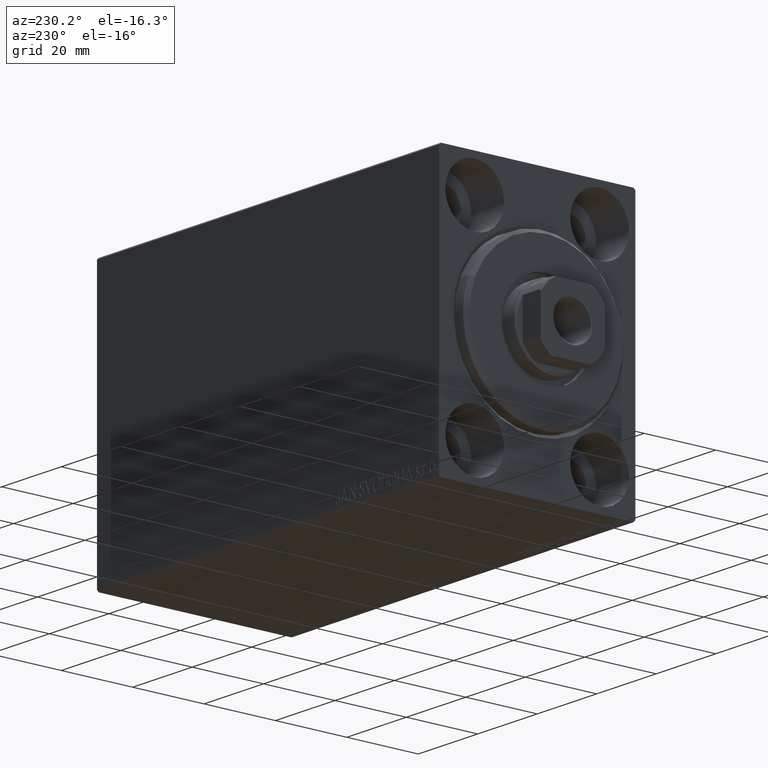
[diagram: clean part render]
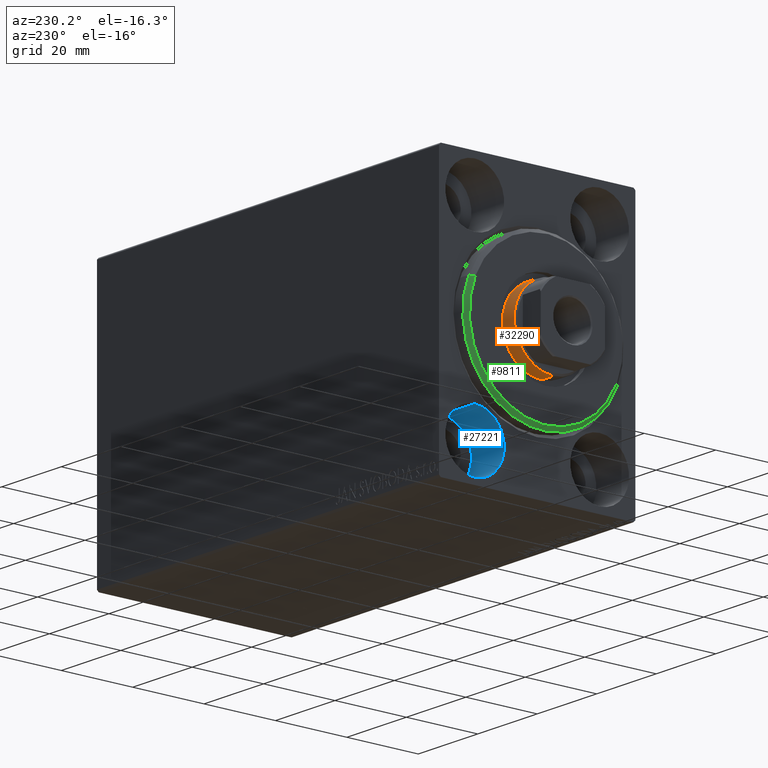
[diagram: same view with three faces highlighted in distinct colors, each labeled with its STEP entity id]
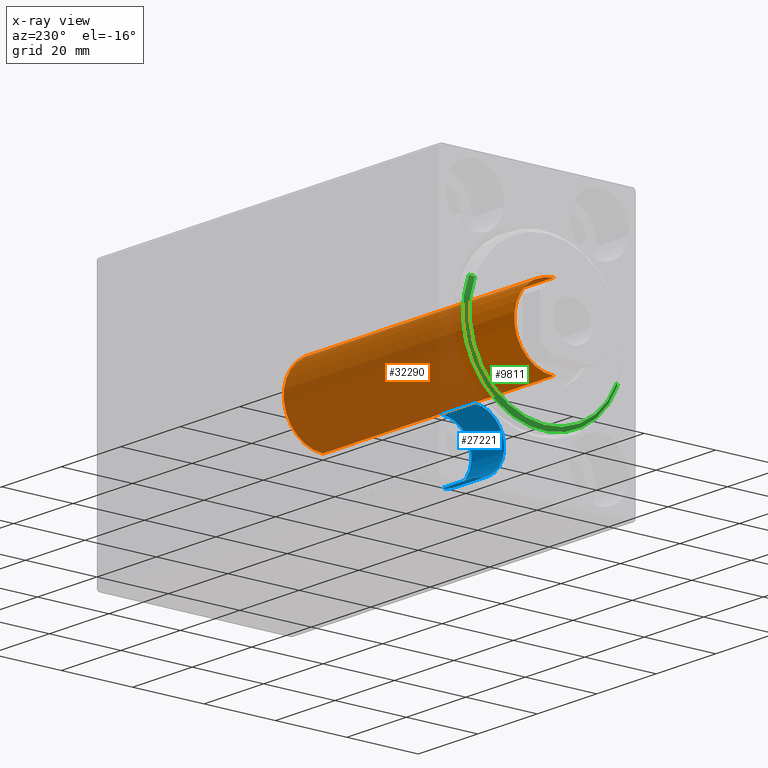
[diagram: x-ray of the same camera — body ghosted, the three highlighted faces saturated]
A machine part, auxiliary view with three faces highlighted in distinct colors.
The next image is the same camera in x-ray (body ghosted, the three faces saturated) — at least one of them is partly hidden behind the body in this view.
Their STEP definitions:

[orange] entity #32290 — the highlighted cylindrical surface (partial cylindrical patch) has radius 11 mm, axis along (1, -0, -0).
#823 = LINE ( 'NONE', #32739, #26436 ) ;
#1213 = AXIS2_PLACEMENT_3D ( 'NONE', #36044, #22194, #32106 ) ;
#1322 = VERTEX_POINT ( 'NONE', #37414 ) ;
#8689 = ORIENTED_EDGE ( 'NONE', *, *, #12006, .F. ) ;
#9115 = AXIS2_PLACEMENT_3D ( 'NONE', #27096, #21153, #16972 ) ;
#10075 = CARTESIAN_POINT ( 'NONE',  ( 11.00000000000000000, 1.347111479062088405E-15, 111.0000000000000000 ) ) ;
#12006 = EDGE_CURVE ( 'NONE', #21042, #38844, #823, .T. ) ;
#13290 = ORIENTED_EDGE ( 'NONE', *, *, #40828, .T. ) ;
#13487 = EDGE_CURVE ( 'NONE', #1322, #38844, #25995, .T. ) ;
#13669 = AXIS2_PLACEMENT_3D ( 'NONE', #18665, #32098, #28775 ) ;
#14242 = CARTESIAN_POINT ( 'NONE',  ( -11.00000000000000000, 0.000000000000000000, 110.5000000000000000 ) ) ;
#16467 = LINE ( 'NONE', #10075, #18547 ) ;
#16972 = DIRECTION ( 'NONE',  ( 1.000000000000000000, 0.000000000000000000, 0.000000000000000000 ) ) ;
#18547 = VECTOR ( 'NONE', #23507, 1000.000000000000000 ) ;
#18665 = CARTESIAN_POINT ( 'NONE',  ( 0.000000000000000000, 0.000000000000000000, 111.0000000000000000 ) ) ;
#20189 = CARTESIAN_POINT ( 'NONE',  ( 11.00000000000000000, 1.347111479062088405E-15, 110.5000000000000000 ) ) ;
#21042 = VERTEX_POINT ( 'NONE', #14242 ) ;
#21153 = DIRECTION ( 'NONE',  ( 0.000000000000000000, 0.000000000000000000, 1.000000000000000000 ) ) ;
#21966 = FACE_OUTER_BOUND ( 'NONE', #36237, .T. ) ;
#22194 = DIRECTION ( 'NONE',  ( 0.000000000000000000, 0.000000000000000000, -1.000000000000000000 ) ) ;
#23507 = DIRECTION ( 'NONE',  ( -0.000000000000000000, -0.000000000000000000, -1.000000000000000000 ) ) ;
#25995 = CIRCLE ( 'NONE', #9115, 11.00000000000000000 ) ;
#26363 = EDGE_CURVE ( 'NONE', #40954, #1322, #16467, .T. ) ;
#26436 = VECTOR ( 'NONE', #32945, 1000.000000000000000 ) ;
#27096 = CARTESIAN_POINT ( 'NONE',  ( 0.000000000000000000, 0.000000000000000000, 33.00000000000000000 ) ) ;
#28775 = DIRECTION ( 'NONE',  ( -1.000000000000000000, 0.000000000000000000, 0.000000000000000000 ) ) ;
#29855 = ORIENTED_EDGE ( 'NONE', *, *, #26363, .T. ) ;
#32098 = DIRECTION ( 'NONE',  ( -0.000000000000000000, -0.000000000000000000, -1.000000000000000000 ) ) ;
#32106 = DIRECTION ( 'NONE',  ( 1.000000000000000000, 0.000000000000000000, 0.000000000000000000 ) ) ;
#32290 = ADVANCED_FACE ( 'NONE', ( #21966 ), #35386, .T. ) ;
#32739 = CARTESIAN_POINT ( 'NONE',  ( -11.00000000000000000, 0.000000000000000000, 111.0000000000000000 ) ) ;
#32945 = DIRECTION ( 'NONE',  ( -0.000000000000000000, -0.000000000000000000, -1.000000000000000000 ) ) ;
#35386 = CYLINDRICAL_SURFACE ( 'NONE', #13669, 11.00000000000000000 ) ;
#36044 = CARTESIAN_POINT ( 'NONE',  ( 0.000000000000000000, 0.000000000000000000, 110.5000000000000000 ) ) ;
#36237 = EDGE_LOOP ( 'NONE', ( #13290, #29855, #37927, #8689 ) ) ;
#37414 = CARTESIAN_POINT ( 'NONE',  ( 11.00000000000000000, 1.347111479062088405E-15, 33.00000000000000000 ) ) ;
#37927 = ORIENTED_EDGE ( 'NONE', *, *, #13487, .T. ) ;
#38844 = VERTEX_POINT ( 'NONE', #39874 ) ;
#39873 = CIRCLE ( 'NONE', #1213, 11.00000000000000000 ) ;
#39874 = CARTESIAN_POINT ( 'NONE',  ( -11.00000000000000000, 0.000000000000000000, 33.00000000000000000 ) ) ;
#40828 = EDGE_CURVE ( 'NONE', #21042, #40954, #39873, .T. ) ;
#40954 = VERTEX_POINT ( 'NONE', #20189 ) ;

[blue] entity #27221 — the highlighted cylindrical surface (partial cylindrical patch) has radius 8.25 mm, axis along (-1, -0, -0).
#1107 = EDGE_CURVE ( 'NONE', #28667, #14158, #21399, .T. ) ;
#1144 = VERTEX_POINT ( 'NONE', #23116 ) ;
#3794 = AXIS2_PLACEMENT_3D ( 'NONE', #22075, #42111, #18771 ) ;
#5332 = ORIENTED_EDGE ( 'NONE', *, *, #1107, .T. ) ;
#9682 = DIRECTION ( 'NONE',  ( 0.000000000000000000, 0.000000000000000000, 1.000000000000000000 ) ) ;
#12162 = AXIS2_PLACEMENT_3D ( 'NONE', #15021, #18964, #15231 ) ;
#12987 = CARTESIAN_POINT ( 'NONE',  ( 11.00000000000000000, 17.49999999999999645, -27.50000000000000355 ) ) ;
#14158 = VERTEX_POINT ( 'NONE', #30523 ) ;
#15021 = CARTESIAN_POINT ( 'NONE',  ( 11.00000000000000000, 17.49999999999999645, -27.50000000000000355 ) ) ;
#15231 = DIRECTION ( 'NONE',  ( 0.000000000000000000, 0.000000000000000000, 1.000000000000000000 ) ) ;
#15429 = DIRECTION ( 'NONE',  ( -1.000000000000000000, -0.000000000000000000, -0.000000000000000000 ) ) ;
#15444 = FACE_OUTER_BOUND ( 'NONE', #21855, .T. ) ;
#16587 = CARTESIAN_POINT ( 'NONE',  ( 11.00000000000000000, 17.49999999999999645, -35.75000000000000711 ) ) ;
#17057 = ORIENTED_EDGE ( 'NONE', *, *, #19270, .F. ) ;
#18771 = DIRECTION ( 'NONE',  ( 0.000000000000000000, 0.000000000000000000, 1.000000000000000000 ) ) ;
#18964 = DIRECTION ( 'NONE',  ( -1.000000000000000000, -0.000000000000000000, -0.000000000000000000 ) ) ;
#19102 = EDGE_CURVE ( 'NONE', #1144, #31775, #20956, .T. ) ;
#19270 = EDGE_CURVE ( 'NONE', #28667, #1144, #29633, .T. ) ;
#19720 = VECTOR ( 'NONE', #15429, 1000.000000000000000 ) ;
#20956 = LINE ( 'NONE', #33936, #40171 ) ;
#21399 = LINE ( 'NONE', #27991, #19720 ) ;
#21855 = EDGE_LOOP ( 'NONE', ( #17057, #5332, #38852, #40693 ) ) ;
#22075 = CARTESIAN_POINT ( 'NONE',  ( 0.000000000000000000, 17.49999999999999645, -27.50000000000000355 ) ) ;
#23116 = CARTESIAN_POINT ( 'NONE',  ( 11.00000000000000000, 17.49999999999999645, -19.25000000000000355 ) ) ;
#23786 = CARTESIAN_POINT ( 'NONE',  ( 0.000000000000000000, 17.49999999999999645, -19.25000000000000355 ) ) ;
#27221 = ADVANCED_FACE ( 'NONE', ( #15444 ), #42526, .F. ) ;
#27331 = DIRECTION ( 'NONE',  ( -1.000000000000000000, -0.000000000000000000, -0.000000000000000000 ) ) ;
#27714 = CIRCLE ( 'NONE', #3794, 8.250000000000000000 ) ;
#27991 = CARTESIAN_POINT ( 'NONE',  ( 11.00000000000000000, 17.49999999999999645, -35.75000000000000711 ) ) ;
#28667 = VERTEX_POINT ( 'NONE', #16587 ) ;
#29633 = CIRCLE ( 'NONE', #36665, 8.250000000000000000 ) ;
#30523 = CARTESIAN_POINT ( 'NONE',  ( 0.000000000000000000, 17.49999999999999645, -35.75000000000000711 ) ) ;
#30983 = EDGE_CURVE ( 'NONE', #14158, #31775, #27714, .T. ) ;
#31775 = VERTEX_POINT ( 'NONE', #23786 ) ;
#33936 = CARTESIAN_POINT ( 'NONE',  ( 11.00000000000000000, 17.49999999999999645, -19.25000000000000355 ) ) ;
#36665 = AXIS2_PLACEMENT_3D ( 'NONE', #12987, #36745, #9682 ) ;
#36745 = DIRECTION ( 'NONE',  ( -1.000000000000000000, 0.000000000000000000, 0.000000000000000000 ) ) ;
#38852 = ORIENTED_EDGE ( 'NONE', *, *, #30983, .T. ) ;
#40171 = VECTOR ( 'NONE', #27331, 1000.000000000000000 ) ;
#40693 = ORIENTED_EDGE ( 'NONE', *, *, #19102, .F. ) ;
#42111 = DIRECTION ( 'NONE',  ( -1.000000000000000000, 0.000000000000000000, 0.000000000000000000 ) ) ;
#42526 = CYLINDRICAL_SURFACE ( 'NONE', #12162, 8.250000000000000000 ) ;

[green] entity #9811 — the highlighted conical surface has half-angle 45 deg.
#2099 = DIRECTION ( 'NONE',  ( 0.000000000000000000, 0.000000000000000000, 1.000000000000000000 ) ) ;
#3736 = AXIS2_PLACEMENT_3D ( 'NONE', #29813, #17043, #6914 ) ;
#5856 = CIRCLE ( 'NONE', #3736, 21.50000000000000355 ) ;
#6163 = DIRECTION ( 'NONE',  ( -1.000000000000000000, 0.000000000000000000, 0.000000000000000000 ) ) ;
#6914 = DIRECTION ( 'NONE',  ( 0.000000000000000000, 0.000000000000000000, -1.000000000000000000 ) ) ;
#9811 = ADVANCED_FACE ( 'NONE', ( #18855 ), #29050, .T. ) ;
#10069 = AXIS2_PLACEMENT_3D ( 'NONE', #31854, #32279, #2099 ) ;
#10191 = VERTEX_POINT ( 'NONE', #42642 ) ;
#12026 = LINE ( 'NONE', #25453, #31776 ) ;
#12763 = VECTOR ( 'NONE', #36752, 1000.000000000000000 ) ;
#12891 = DIRECTION ( 'NONE',  ( -0.7071067811865487940, 8.659560562354919300E-17, -0.7071067811865463515 ) ) ;
#13015 = ORIENTED_EDGE ( 'NONE', *, *, #24390, .F. ) ;
#15620 = EDGE_LOOP ( 'NONE', ( #13015, #16108, #17300, #32606 ) ) ;
#15987 = VERTEX_POINT ( 'NONE', #38843 ) ;
#16108 = ORIENTED_EDGE ( 'NONE', *, *, #21198, .T. ) ;
#16141 = VERTEX_POINT ( 'NONE', #20100 ) ;
#17043 = DIRECTION ( 'NONE',  ( 1.000000000000000000, -0.000000000000000000, 0.000000000000000000 ) ) ;
#17300 = ORIENTED_EDGE ( 'NONE', *, *, #25023, .F. ) ;
#18855 = FACE_OUTER_BOUND ( 'NONE', #15620, .T. ) ;
#20005 = EDGE_CURVE ( 'NONE', #16141, #15987, #42946, .T. ) ;
#20100 = CARTESIAN_POINT ( 'NONE',  ( 3.000000000000000000, 0.000000000000000000, 21.50000000000000355 ) ) ;
#21198 = EDGE_CURVE ( 'NONE', #41723, #10191, #12026, .T. ) ;
#24390 = EDGE_CURVE ( 'NONE', #41723, #16141, #5856, .T. ) ;
#25023 = EDGE_CURVE ( 'NONE', #15987, #10191, #29756, .T. ) ;
#25453 = CARTESIAN_POINT ( 'NONE',  ( 3.000000000000000000, 2.632990618166810024E-15, -21.50000000000000355 ) ) ;
#29050 = CONICAL_SURFACE ( 'NONE', #10069, 21.50000000000000355, 0.7853981633974466137 ) ;
#29756 = CIRCLE ( 'NONE', #35384, 22.50000000000000355 ) ;
#29813 = CARTESIAN_POINT ( 'NONE',  ( 3.000000000000000000, 0.000000000000000000, 0.000000000000000000 ) ) ;
#31776 = VECTOR ( 'NONE', #12891, 1000.000000000000000 ) ;
#31854 = CARTESIAN_POINT ( 'NONE',  ( 3.000000000000000000, 0.000000000000000000, 0.000000000000000000 ) ) ;
#32279 = DIRECTION ( 'NONE',  ( -1.000000000000000000, 0.000000000000000000, 0.000000000000000000 ) ) ;
#32606 = ORIENTED_EDGE ( 'NONE', *, *, #20005, .F. ) ;
#33434 = DIRECTION ( 'NONE',  ( 0.000000000000000000, 0.000000000000000000, -1.000000000000000000 ) ) ;
#35384 = AXIS2_PLACEMENT_3D ( 'NONE', #40499, #6163, #33434 ) ;
#36752 = DIRECTION ( 'NONE',  ( -0.7071067811865487940, 0.000000000000000000, 0.7071067811865463515 ) ) ;
#37239 = CARTESIAN_POINT ( 'NONE',  ( 3.000000000000000000, 2.694222958124177598E-15, -21.50000000000000355 ) ) ;
#38843 = CARTESIAN_POINT ( 'NONE',  ( 1.999999999999999112, 0.000000000000000000, 22.50000000000000355 ) ) ;
#39421 = CARTESIAN_POINT ( 'NONE',  ( 3.000000000000000000, 0.000000000000000000, 21.50000000000000355 ) ) ;
#40499 = CARTESIAN_POINT ( 'NONE',  ( 1.999999999999999112, 0.000000000000000000, 0.000000000000000000 ) ) ;
#41723 = VERTEX_POINT ( 'NONE', #37239 ) ;
#42642 = CARTESIAN_POINT ( 'NONE',  ( 1.999999999999999112, 2.755455298081545172E-15, -22.50000000000000355 ) ) ;
#42946 = LINE ( 'NONE', #39421, #12763 ) ;